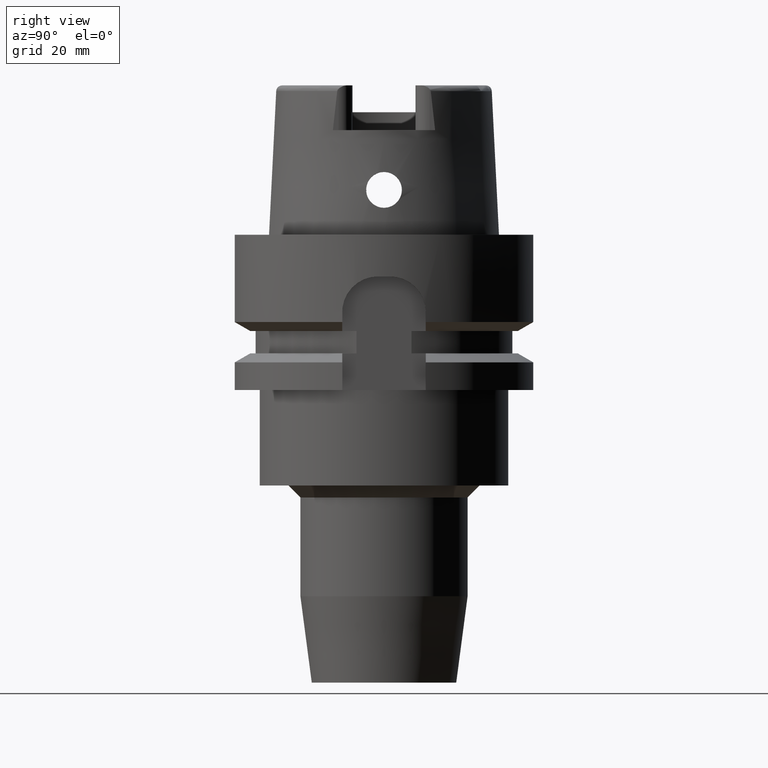
[diagram: clean part render]
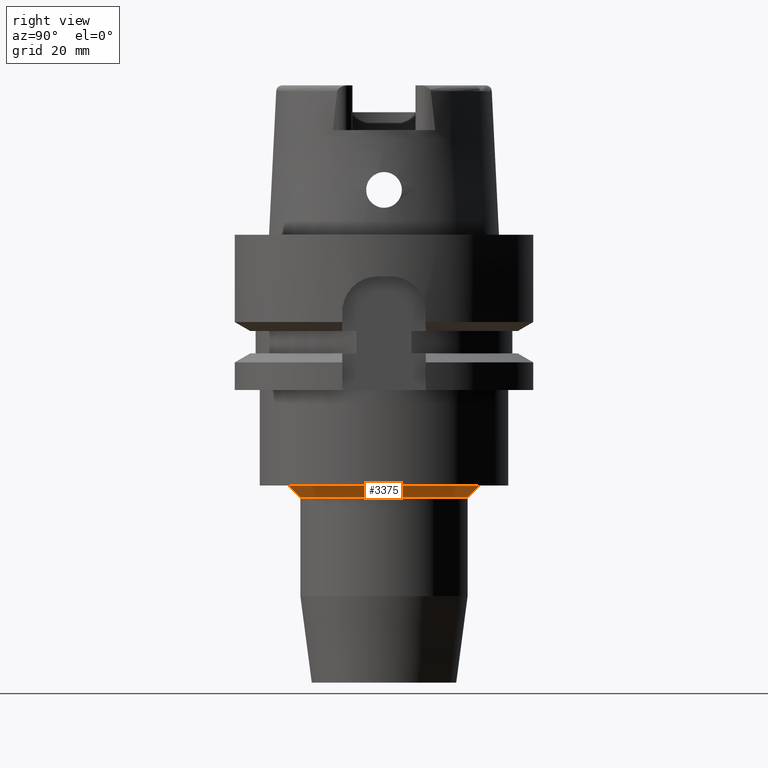
[diagram: same view with one face highlighted and labeled with its STEP entity id]
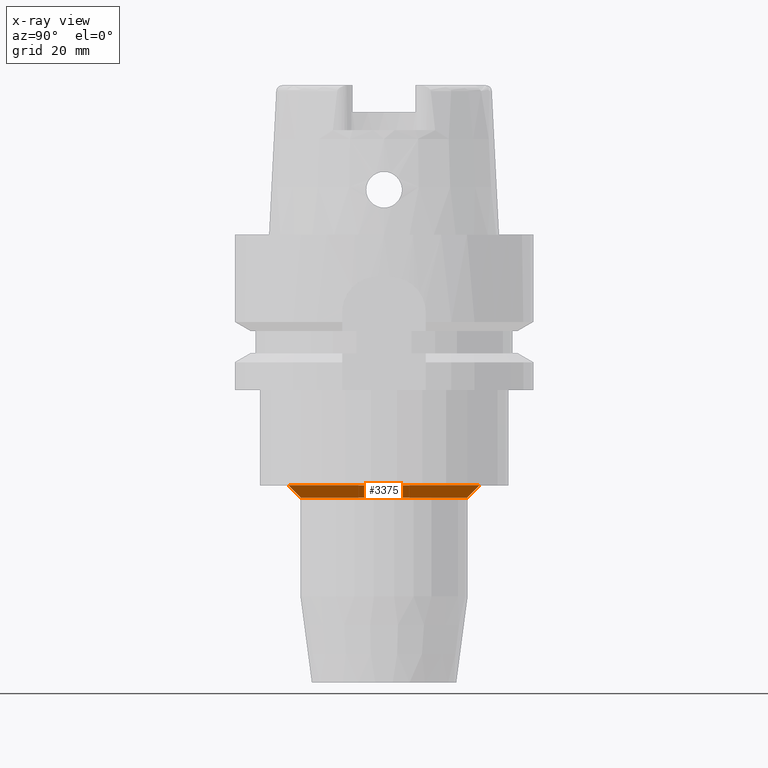
[diagram: x-ray of the same camera — body ghosted, the highlighted face saturated]
A machine part, right view. The second image highlights one B-rep face of the part: STEP entity #3375.
The next image is the same camera in x-ray: the body ghosted, the highlighted face saturated — about 0% of this face is hidden behind the body in this view.
In plain terms, the highlighted conical surface has half-angle 45 deg.
Its self-contained STEP definition (entity closure, byte-faithful):
#1075=DIRECTION('',(0.E0,-7.071067811865E-1,-7.071067811865E-1));
#1076=VECTOR('',#1075,2.828427124746E0);
#1077=CARTESIAN_POINT('',(0.E0,1.6E1,-4.2E1));
#1078=LINE('',#1077,#1076);
#1082=CARTESIAN_POINT('',(0.E0,0.E0,-4.4E1));
#1083=DIRECTION('',(0.E0,0.E0,-1.E0));
#1084=DIRECTION('',(0.E0,1.E0,0.E0));
#1085=AXIS2_PLACEMENT_3D('',#1082,#1083,#1084);
#1090=DIRECTION('',(0.E0,7.071067811865E-1,-7.071067811865E-1));
#1091=VECTOR('',#1090,2.828427124746E0);
#1092=CARTESIAN_POINT('',(0.E0,-1.6E1,-4.2E1));
#1093=LINE('',#1092,#1091);
#1129=CARTESIAN_POINT('',(0.E0,0.E0,-4.2E1));
#1130=DIRECTION('',(0.E0,0.E0,-1.E0));
#1131=DIRECTION('',(0.E0,1.E0,0.E0));
#1132=AXIS2_PLACEMENT_3D('',#1129,#1130,#1131);
#2417=CARTESIAN_POINT('',(0.E0,1.4E1,-4.4E1));
#2418=VERTEX_POINT('',#2417);
#2419=CARTESIAN_POINT('',(0.E0,-1.4E1,-4.4E1));
#2420=VERTEX_POINT('',#2419);
#2421=CARTESIAN_POINT('',(0.E0,1.6E1,-4.2E1));
#2422=VERTEX_POINT('',#2421);
#2423=CARTESIAN_POINT('',(0.E0,-1.6E1,-4.2E1));
#2424=VERTEX_POINT('',#2423);
#3361=CARTESIAN_POINT('',(0.E0,0.E0,-4.3E1));
#3362=DIRECTION('',(0.E0,0.E0,1.E0));
#3363=DIRECTION('',(0.E0,1.E0,0.E0));
#3364=AXIS2_PLACEMENT_3D('',#3361,#3362,#3363);
#3365=CONICAL_SURFACE('',#3364,1.5E1,4.5E1);
#3367=ORIENTED_EDGE('',*,*,#3366,.T.);
#3368=ORIENTED_EDGE('',*,*,#3356,.T.);
#3370=ORIENTED_EDGE('',*,*,#3369,.F.);
#3372=ORIENTED_EDGE('',*,*,#3371,.F.);
#3373=EDGE_LOOP('',(#3367,#3368,#3370,#3372));
#3374=FACE_OUTER_BOUND('',#3373,.F.);
#1086=CIRCLE('',#1085,1.4E1);
#1133=CIRCLE('',#1132,1.6E1);
#3356=EDGE_CURVE('',#2418,#2420,#1086,.T.);
#3366=EDGE_CURVE('',#2422,#2418,#1078,.T.);
#3369=EDGE_CURVE('',#2424,#2420,#1093,.T.);
#3371=EDGE_CURVE('',#2422,#2424,#1133,.T.);
#3375=ADVANCED_FACE('',(#3374),#3365,.T.);